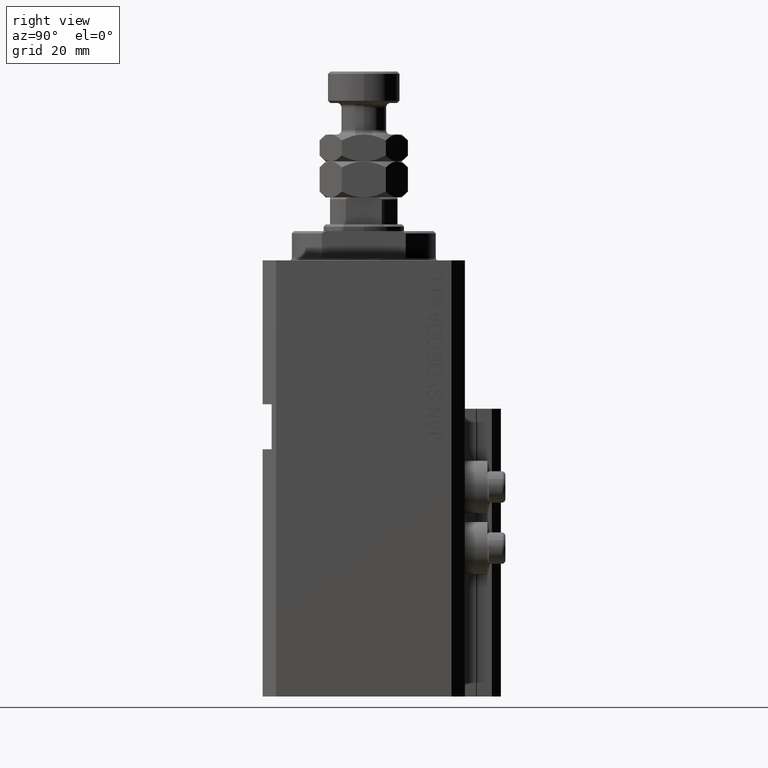
[diagram: clean part render]
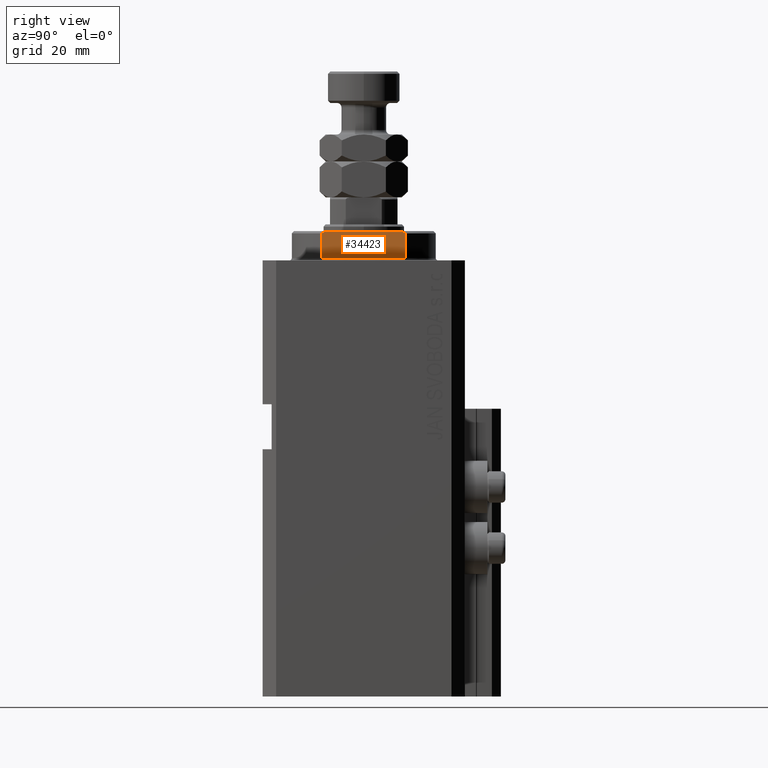
[diagram: same view with one face highlighted and labeled with its STEP entity id]
A machine part, right view. The second image highlights one B-rep face of the part: STEP entity #34423.
In plain terms, the highlighted planar face has unit normal (-1, 0, 0).
Its self-contained STEP definition (entity closure, byte-faithful):
#420 = VERTEX_POINT ( 'NONE', #6584 ) ;
#2667 = CARTESIAN_POINT ( 'NONE',  ( -13.00000000000000000, 8.440971508067139695, -6.500000000000000000 ) ) ;
#3875 = VERTEX_POINT ( 'NONE', #8434 ) ;
#4153 = CARTESIAN_POINT ( 'NONE',  ( -13.00000000000000000, 9.327379053088813876, -6.500000000000000000 ) ) ;
#4670 = CARTESIAN_POINT ( 'NONE',  ( -13.00000000000000000, 9.327379053088815652, -0.4999999999999995559 ) ) ;
#5023 = VERTEX_POINT ( 'NONE', #2667 ) ;
#5306 = DIRECTION ( 'NONE',  ( 0.000000000000000000, 0.000000000000000000, -1.000000000000000000 ) ) ;
#5338 = ORIENTED_EDGE ( 'NONE', *, *, #16661, .T. ) ;
#5914 = DIRECTION ( 'NONE',  ( -0.000000000000000000, -1.000000000000000000, -0.000000000000000000 ) ) ;
#6584 = CARTESIAN_POINT ( 'NONE',  ( -13.00000000000000000, 9.327379053088916905, -6.000000000000014211 ) ) ;
#6995 = DIRECTION ( 'NONE',  ( -0.000000000000000000, -1.000000000000000000, -0.000000000000000000 ) ) ;
#7715 = CARTESIAN_POINT ( 'NONE',  ( -13.00000000000000000, -8.440971508067139695, -6.500000000000000000 ) ) ;
#8434 = CARTESIAN_POINT ( 'NONE',  ( -13.00000000000000000, -9.327379053088815652, -6.000000000000023981 ) ) ;
#8756 = LINE ( 'NONE', #12219, #25727 ) ;
#8833 = DIRECTION ( 'NONE',  ( 0.000000000000000000, 0.000000000000000000, -1.000000000000000000 ) ) ;
#11179 = CARTESIAN_POINT ( 'NONE',  ( -13.00000000000000000, -43.08131845707602992, -6.500000000000000000 ) ) ;
#12043 = DIRECTION ( 'NONE',  ( -0.000000000000000000, -0.000000000000000000, 1.000000000000000000 ) ) ;
#12219 = CARTESIAN_POINT ( 'NONE',  ( -13.00000000000000000, -9.327379053088813876, -6.500000000000000000 ) ) ;
#12534 = CARTESIAN_POINT ( 'NONE',  ( -13.00000000000000000, -43.08131845707602992, -0.4999999999999995559 ) ) ;
#12836 = CARTESIAN_POINT ( 'NONE',  ( -13.00000000000000000, -43.08131845707602992, -0.4999999999999995559 ) ) ;
#13270 = FACE_OUTER_BOUND ( 'NONE', #18611, .T. ) ;
#13805 = EDGE_CURVE ( 'NONE', #5023, #42964, #33659, .T. ) ;
#16421 = CARTESIAN_POINT ( 'NONE',  ( -13.00000000000000000, 9.327379053088916905, -6.000000000000014211 ) ) ;
#16661 = EDGE_CURVE ( 'NONE', #42964, #3875, #34593, .T. ) ;
#17253 = VECTOR ( 'NONE', #12043, 1000.000000000000000 ) ;
#17432 = VECTOR ( 'NONE', #6995, 1000.000000000000000 ) ;
#18611 = EDGE_LOOP ( 'NONE', ( #35708, #24053, #5338, #44991, #27246, #44266 ) ) ;
#19974 = VERTEX_POINT ( 'NONE', #27967 ) ;
#24053 = ORIENTED_EDGE ( 'NONE', *, *, #13805, .T. ) ;
#25727 = VECTOR ( 'NONE', #5306, 1000.000000000000000 ) ;
#27246 = ORIENTED_EDGE ( 'NONE', *, *, #39872, .F. ) ;
#27303 = CARTESIAN_POINT ( 'NONE',  ( -13.00000000000000000, 8.738667591047022398, -6.337881022290549282 ) ) ;
#27542 = CARTESIAN_POINT ( 'NONE',  ( -13.00000000000000000, 8.440971508067139695, -6.500000000000000000 ) ) ;
#27967 = CARTESIAN_POINT ( 'NONE',  ( -13.00000000000000000, -9.327379053088815652, -0.4999999999999995559 ) ) ;
#29710 = AXIS2_PLACEMENT_3D ( 'NONE', #12534, #42647, #8833 ) ;
#33659 = LINE ( 'NONE', #11179, #17432 ) ;
#33692 = EDGE_CURVE ( 'NONE', #19974, #3875, #8756, .T. ) ;
#34423 = ADVANCED_FACE ( 'NONE', ( #13270 ), #46362, .F. ) ;
#34581 = EDGE_CURVE ( 'NONE', #420, #5023, #38481, .T. ) ;
#34593 = B_SPLINE_CURVE_WITH_KNOTS ( 'NONE', 3,
 ( #7715, #41770, #41525, #45721 ),
 .UNSPECIFIED., .F., .F.,
 ( 4, 4 ),
 ( 0.04915043732154475431, 0.05017913261572017058 ),
 .UNSPECIFIED. ) ;
#35552 = LINE ( 'NONE', #12836, #45631 ) ;
#35708 = ORIENTED_EDGE ( 'NONE', *, *, #34581, .T. ) ;
#38481 = B_SPLINE_CURVE_WITH_KNOTS ( 'NONE', 3,
 ( #16421, #39372, #27303, #27542 ),
 .UNSPECIFIED., .F., .F.,
 ( 4, 4 ),
 ( 0.03031084603841392722, 0.03132841702658674399 ),
 .UNSPECIFIED. ) ;
#38968 = CARTESIAN_POINT ( 'NONE',  ( -13.00000000000000000, -8.440971508067139695, -6.500000000000000000 ) ) ;
#39372 = CARTESIAN_POINT ( 'NONE',  ( -13.00000000000000000, 9.034035639617135516, -6.171007825636148247 ) ) ;
#39872 = EDGE_CURVE ( 'NONE', #44451, #19974, #35552, .T. ) ;
#40023 = EDGE_CURVE ( 'NONE', #420, #44451, #41673, .T. ) ;
#41525 = CARTESIAN_POINT ( 'NONE',  ( -13.00000000000000000, -9.034292940839598884, -6.170857829009066542 ) ) ;
#41673 = LINE ( 'NONE', #4153, #17253 ) ;
#41770 = CARTESIAN_POINT ( 'NONE',  ( -13.00000000000000000, -8.738941625005658409, -6.337731789204286592 ) ) ;
#42647 = DIRECTION ( 'NONE',  ( 1.000000000000000000, 0.000000000000000000, 0.000000000000000000 ) ) ;
#42964 = VERTEX_POINT ( 'NONE', #38968 ) ;
#44266 = ORIENTED_EDGE ( 'NONE', *, *, #40023, .F. ) ;
#44451 = VERTEX_POINT ( 'NONE', #4670 ) ;
#44991 = ORIENTED_EDGE ( 'NONE', *, *, #33692, .F. ) ;
#45631 = VECTOR ( 'NONE', #5914, 1000.000000000000000 ) ;
#45721 = CARTESIAN_POINT ( 'NONE',  ( -13.00000000000000000, -9.327379053088815652, -6.000000000000023981 ) ) ;
#46362 = PLANE ( 'NONE',  #29710 ) ;